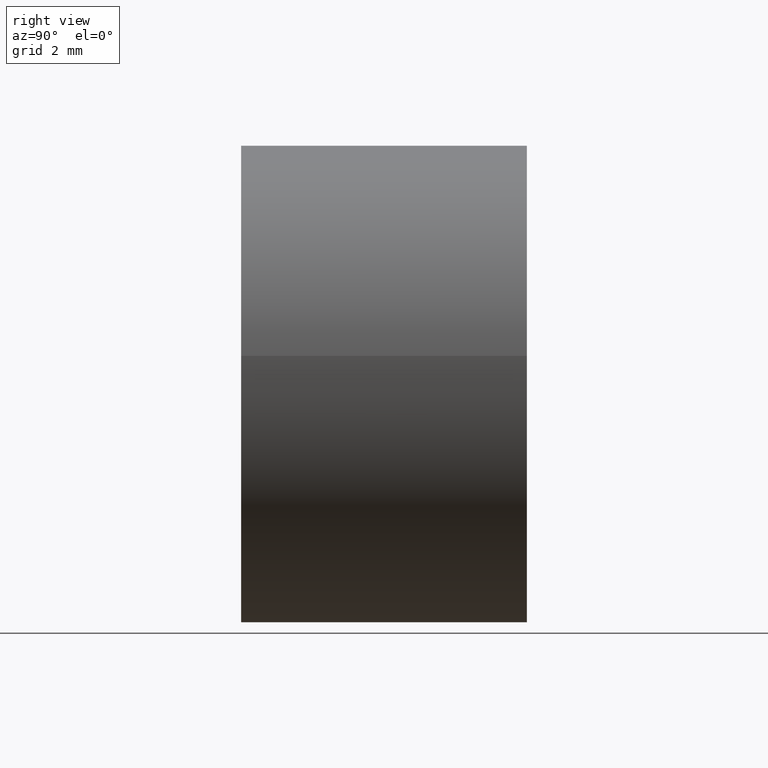
[diagram: clean part render]
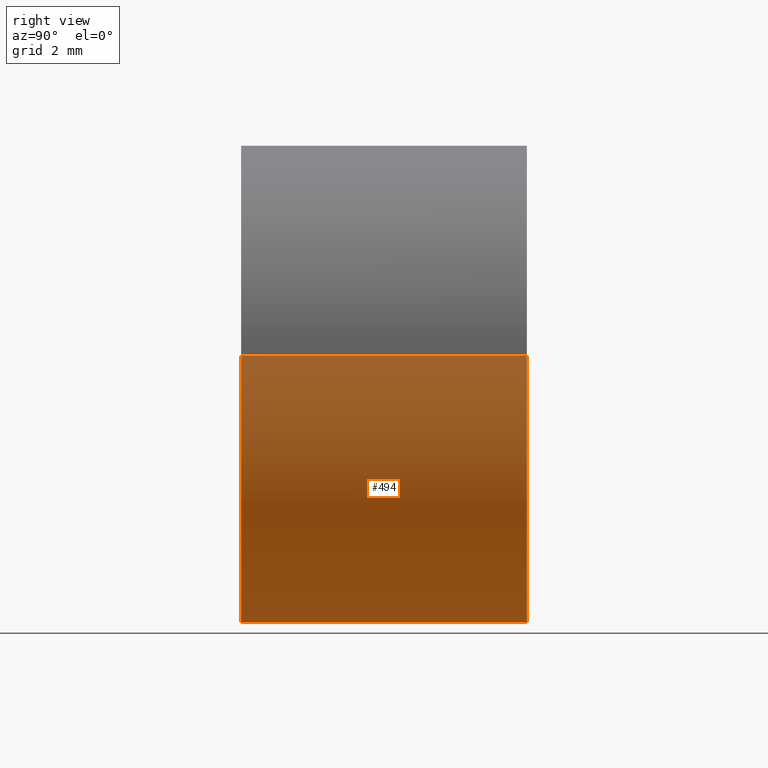
[diagram: same view with one face highlighted and labeled with its STEP entity id]
A machine part, right view. The second image highlights one B-rep face of the part: STEP entity #494.
In plain terms, the highlighted face is a freeform B-spline surface patch.
Its self-contained STEP definition (entity closure, byte-faithful):
#392=CARTESIAN_POINT('',(4.965047631818332,-6.150000000000001,0.590171173283792));
#393=CARTESIAN_POINT('',(4.981938077243028,-6.150000000000001,0.448073643189888));
#394=CARTESIAN_POINT('',(4.990673992109334,-6.150000000000001,0.305242697674285));
#395=CARTESIAN_POINT('',(5.295916689783620,-6.150000000000002,-4.685431294435048));
#396=CARTESIAN_POINT('',(0.305242697674285,-6.150000000000001,-4.990673992109334));
#397=CARTESIAN_POINT('',(-4.685431294435048,-6.150000000000002,-5.295916689783620));
#398=CARTESIAN_POINT('',(-4.990673992109334,-6.150000000000001,-0.305242697674285));
#399=CARTESIAN_POINT('',(4.965047631818332,0.153750000000000,0.590171173283792));
#400=CARTESIAN_POINT('',(4.981938077243028,0.153750000000001,0.448073643189888));
#401=CARTESIAN_POINT('',(4.990673992109334,0.153750000000001,0.305242697674285));
#402=CARTESIAN_POINT('',(5.295916689783620,0.153750000000000,-4.685431294435048));
#403=CARTESIAN_POINT('',(0.305242697674285,0.153750000000001,-4.990673992109334));
#404=CARTESIAN_POINT('',(-4.685431294435048,0.153750000000000,-5.295916689783620));
#405=CARTESIAN_POINT('',(-4.990673992109334,0.153750000000001,-0.305242697674285));
#413=(BOUNDED_SURFACE()B_SPLINE_SURFACE(2,1,((#392,#399),(#393,#400),(#394,#401),(#395,#402),(#396,#403),(#397,#404),(#398,#405)),.UNSPECIFIED.,.F.,.F.,.U.)B_SPLINE_SURFACE_WITH_KNOTS((3,2,2,3),(2,2),(0.0,0.331370849898476,8.615642097360375,16.899913344822270),(0.0,6.303750000000003),.UNSPECIFIED.)GEOMETRIC_REPRESENTATION_ITEM()RATIONAL_B_SPLINE_SURFACE(((0.977505800795127,0.977505800795127),(0.988284271247462,0.988284271247462),(1.0,1.0),(0.707106781186548,0.707106781186548),(1.0,1.0),(0.707106781186548,0.707106781186548),(1.0,1.0)))REPRESENTATION_ITEM('')SURFACE());
#414=CARTESIAN_POINT('',(4.965048007634929,-4.741845E-015,0.590168011561354));
#415=VERTEX_POINT('',#414);
#416=CARTESIAN_POINT('',(0.0,0.0,-5.0));
#417=VERTEX_POINT('',#416);
#418=CARTESIAN_POINT('',(4.965048007634929,-4.741845E-015,0.590168011561354));
#419=CARTESIAN_POINT('',(5.000000000000001,0.0,0.296119000685819));
#420=CARTESIAN_POINT('',(5.0,0.0,0.0));
#421=CARTESIAN_POINT('',(5.000000000000001,0.0,-5.000000000000001));
#422=CARTESIAN_POINT('',(0.0,0.0,-5.0));
#430=(BOUNDED_CURVE()B_SPLINE_CURVE(2,(#418,#419,#420,#421,#422),.UNSPECIFIED.,.F.,.U.)B_SPLINE_CURVE_WITH_KNOTS((3,2,3),(0.229562581136241,0.250000000000000,0.500000000000000),.UNSPECIFIED.)CURVE()GEOMETRIC_REPRESENTATION_ITEM()RATIONAL_B_SPLINE_CURVE((0.956026965128767,0.976056074419019,1.0,0.707106781186548,1.0))REPRESENTATION_ITEM(''));
#431=EDGE_CURVE('',#415,#417,#430,.T.);
#432=ORIENTED_EDGE('',*,*,#431,.F.);
#433=CARTESIAN_POINT('',(4.965048002999415,-6.0,0.590168050559857));
#434=VERTEX_POINT('',#433);
#435=CARTESIAN_POINT('',(4.965048002999415,-6.0,0.590168050559857));
#436=CARTESIAN_POINT('',(4.965048007634929,-4.741845E-015,0.590168011561354));
#437=QUASI_UNIFORM_CURVE('',1,(#435,#436),.UNSPECIFIED.,.F.,.U.);
#438=EDGE_CURVE('',#434,#415,#437,.T.);
#439=ORIENTED_EDGE('',*,*,#438,.F.);
#440=CARTESIAN_POINT('',(0.0,-6.0,-5.0));
#441=VERTEX_POINT('',#440);
#442=CARTESIAN_POINT('',(4.965048002999415,-6.000000000000001,0.590168050559857));
#443=CARTESIAN_POINT('',(5.0,-6.0,0.296119020391211));
#444=CARTESIAN_POINT('',(5.0,-6.0,0.0));
#445=CARTESIAN_POINT('',(5.000000000000001,-6.0,-5.000000000000001));
#446=CARTESIAN_POINT('',(0.0,-6.0,-5.0));
#454=(BOUNDED_CURVE()B_SPLINE_CURVE(2,(#442,#443,#444,#445,#446),.UNSPECIFIED.,.F.,.U.)B_SPLINE_CURVE_WITH_KNOTS((3,2,3),(0.229562579808786,0.250000000000000,0.500000000000000),.UNSPECIFIED.)CURVE()GEOMETRIC_REPRESENTATION_ITEM()RATIONAL_B_SPLINE_CURVE((0.956026962526900,0.976056072863809,1.0,0.707106781186548,1.0))REPRESENTATION_ITEM(''));
#455=EDGE_CURVE('',#434,#441,#454,.T.);
#456=ORIENTED_EDGE('',*,*,#455,.T.);
#457=CARTESIAN_POINT('',(-4.990674099992546,-6.0,-0.305240933789139));
#458=VERTEX_POINT('',#457);
#459=CARTESIAN_POINT('',(0.0,-6.0,-5.0));
#460=CARTESIAN_POINT('',(-4.703532000033385,-6.0,-5.000000000000001));
#461=CARTESIAN_POINT('',(-4.990674099992546,-6.0,-0.305240933789139));
#469=(BOUNDED_CURVE()B_SPLINE_CURVE(2,(#459,#460,#461),.UNSPECIFIED.,.F.,.U.)B_SPLINE_CURVE_WITH_KNOTS((3,3),(0.500000000000000,0.739333023226263),.UNSPECIFIED.)CURVE()GEOMETRIC_REPRESENTATION_ITEM()RATIONAL_B_SPLINE_CURVE((1.0,0.719603921835620,0.976072172374189))REPRESENTATION_ITEM(''));
#470=EDGE_CURVE('',#441,#458,#469,.T.);
#471=ORIENTED_EDGE('',*,*,#470,.T.);
#472=CARTESIAN_POINT('',(-4.990674101339240,-1.942890E-015,-0.305240911770624));
#473=VERTEX_POINT('',#472);
#474=CARTESIAN_POINT('',(-4.990674099992546,-6.0,-0.305240933789139));
#475=CARTESIAN_POINT('',(-4.990674101339240,-1.942890E-015,-0.305240911770624));
#476=QUASI_UNIFORM_CURVE('',1,(#474,#475),.UNSPECIFIED.,.F.,.U.);
#477=EDGE_CURVE('',#458,#473,#476,.T.);
#478=ORIENTED_EDGE('',*,*,#477,.T.);
#479=CARTESIAN_POINT('',(0.0,0.0,-5.0));
#480=CARTESIAN_POINT('',(-4.703532020823824,0.0,-4.999999999999999));
#481=CARTESIAN_POINT('',(-4.990674101339240,-1.942890E-015,-0.305240911770624));
#489=(BOUNDED_CURVE()B_SPLINE_CURVE(2,(#479,#480,#481),.UNSPECIFIED.,.F.,.U.)B_SPLINE_CURVE_WITH_KNOTS((3,3),(0.500000000000000,0.739333023987528),.UNSPECIFIED.)CURVE()GEOMETRIC_REPRESENTATION_ITEM()RATIONAL_B_SPLINE_CURVE((1.0,0.719603920943743,0.976072174005725))REPRESENTATION_ITEM(''));
#490=EDGE_CURVE('',#417,#473,#489,.T.);
#491=ORIENTED_EDGE('',*,*,#490,.F.);
#492=EDGE_LOOP('',(#432,#439,#456,#471,#478,#491));
#493=FACE_OUTER_BOUND('',#492,.T.);
#494=ADVANCED_FACE('',(#493),#413,.T.);